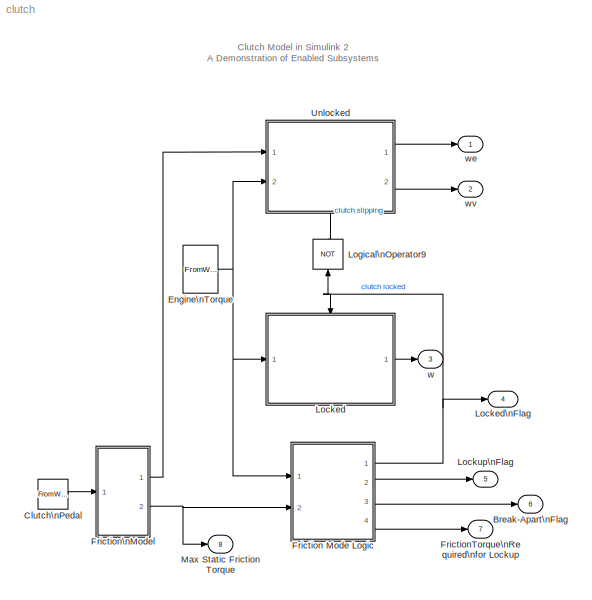
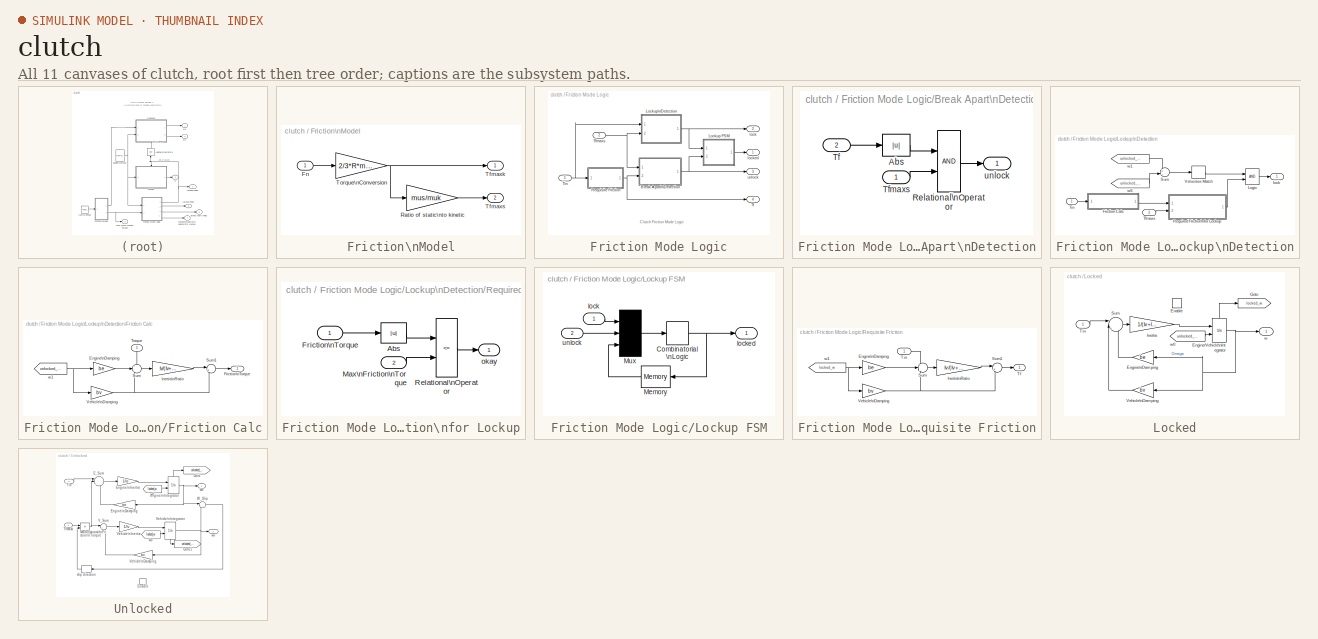
[diagram: thumbnail index - all 11 canvases of the model, root first then tree order]
MODEL clutch
KIND model
CONFIG PostLoadFcn = clutchplot
CONFIG PreLoadFcn = load clutchparam.mat
CONFIG StartFcn = clutchplot Start
CONFIG StopFcn = clutchplot Stop
BLOCK [Outport] Break-Apart\nFlag
  IconDisplay = Port number
  InitialOutput = 0
  Port = 6
BLOCK [FromWorkspace] Clutch\nPedal
  SampleTime = 0
  VariableName = Fn
BLOCK [FromWorkspace] Engine\nTorque
  SampleTime = 0
  VariableName = Tin
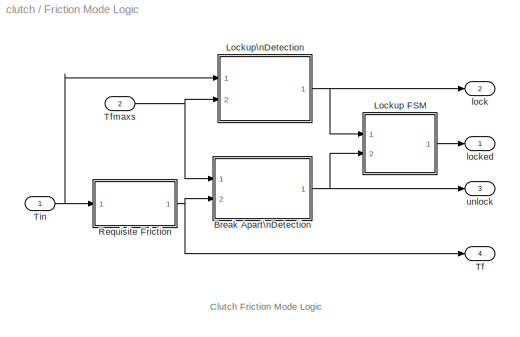
BLOCK [SubSystem] Friction Mode Logic
  MaskDisplay = plot([-3 1 1 3 -1 -1],[-1 -1 1 1 1 -1],-4,-5,4,5)
  MaskIconFrame = on
  MaskIconOpaque = off
  MaskIconRotate = none
  MaskIconUnits = autoscale
  MinAlgLoopOccurrences = off
  Ports = [2, 4]
  PropExecContextAcrossSSBoundary = on
  RTWSystemCode = Auto
  TreatAsAtomicUnit = off
BLOCK [SubSystem] Friction Mode Logic/Break Apart\nDetection
  MinAlgLoopOccurrences = off
  Ports = [2, 1]
  PropExecContextAcrossSSBoundary = on
  RTWSystemCode = Auto
  TreatAsAtomicUnit = off
BLOCK [Abs] Friction Mode Logic/Break Apart\nDetection/Abs
BLOCK [RelationalOperator] Friction Mode Logic/Break Apart\nDetection/Relational\nOperator
BLOCK [Inport] Friction Mode Logic/Break Apart\nDetection/Tf
  IconDisplay = Port number
  LatchInput = off
  Port = 2
BLOCK [Inport] Friction Mode Logic/Break Apart\nDetection/Tfmaxs
  IconDisplay = Port number
  LatchInput = off
  Port = 1
BLOCK [Outport] Friction Mode Logic/Break Apart\nDetection/unlock
  IconDisplay = Port number
  InitialOutput = 0
BLOCK [SubSystem] Friction Mode Logic/Lockup FSM
  MinAlgLoopOccurrences = off
  Ports = [2, 1]
  PropExecContextAcrossSSBoundary = on
  RTWSystemCode = Auto
  TreatAsAtomicUnit = off
BLOCK [CombinatorialLogic] Friction Mode Logic/Lockup FSM/Combinatorial \nLogic
  TruthTable = [0;1;0;0;1;1;1;0]
BLOCK [Memory] Friction Mode Logic/Lockup FSM/Memory
BLOCK [Mux] Friction Mode Logic/Lockup FSM/Mux
  Inputs = 3
  Ports = [3, 1]
BLOCK [Inport] Friction Mode Logic/Lockup FSM/lock
  IconDisplay = Port number
  LatchInput = off
  Port = 1
BLOCK [Outport] Friction Mode Logic/Lockup FSM/locked
  IconDisplay = Port number
  InitialOutput = 0
BLOCK [Inport] Friction Mode Logic/Lockup FSM/unlock
  IconDisplay = Port number
  LatchInput = off
  Port = 2
BLOCK [SubSystem] Friction Mode Logic/Lockup\nDetection
  MinAlgLoopOccurrences = off
  Ports = [2, 1]
  PropExecContextAcrossSSBoundary = on
  RTWSystemCode = Auto
  TreatAsAtomicUnit = off
BLOCK [SubSystem] Friction Mode Logic/Lockup\nDetection/Friction Calc
  MinAlgLoopOccurrences = off
  Ports = [1, 1]
  PropExecContextAcrossSSBoundary = on
  RTWSystemCode = Auto
  TreatAsAtomicUnit = off
BLOCK [Gain] Friction Mode Logic/Lockup\nDetection/Friction Calc/Engine\nDamping
  Gain = be
BLOCK [Outport] Friction Mode Logic/Lockup\nDetection/Friction Calc/Friction\nTorque
  IconDisplay = Port number
  InitialOutput = 0
BLOCK [Gain] Friction Mode Logic/Lockup\nDetection/Friction Calc/Inertia\nRatio
  Gain = Iv/(Iv+Ie)
BLOCK [Sum] Friction Mode Logic/Lockup\nDetection/Friction Calc/Sum
  IconShape = round
  Inputs = +--
  Ports = [3, 1]
BLOCK [Sum] Friction Mode Logic/Lockup\nDetection/Friction Calc/Sum1
  IconShape = round
  Inputs = |++
  Ports = [2, 1]
BLOCK [Inport] Friction Mode Logic/Lockup\nDetection/Friction Calc/Torque
  IconDisplay = Port number
  LatchInput = off
  Port = 1
BLOCK [Gain] Friction Mode Logic/Lockup\nDetection/Friction Calc/Vehicle\nDamping
  Gain = bv
BLOCK [From] Friction Mode Logic/Lockup\nDetection/Friction Calc/w1
  DialogController = Simulink.DDGSource
  GotoTag = unlocked_we
BLOCK [Logic] Friction Mode Logic/Lockup\nDetection/Logic
  Ports = [2, 1]
BLOCK [SubSystem] Friction Mode Logic/Lockup\nDetection/Required Friction\nfor Lockup
  MinAlgLoopOccurrences = off
  Ports = [2, 1]
  PropExecContextAcrossSSBoundary = on
  RTWSystemCode = Auto
  TreatAsAtomicUnit = off
BLOCK [Abs] Friction Mode Logic/Lockup\nDetection/Required Friction\nfor Lockup/Abs
BLOCK [Inport] Friction Mode Logic/Lockup\nDetection/Required Friction\nfor Lockup/Friction\nTorque
  IconDisplay = Port number
  LatchInput = off
  Port = 1
BLOCK [Inport] Friction Mode Logic/Lockup\nDetection/Required Friction\nfor Lockup/Max\nFriction\nTorque
  IconDisplay = Port number
  LatchInput = off
  Port = 2
BLOCK [RelationalOperator] Friction Mode Logic/Lockup\nDetection/Required Friction\nfor Lockup/Relational\nOperator
  Operator = <=
BLOCK [Outport] Friction Mode Logic/Lockup\nDetection/Required Friction\nfor Lockup/okay
  IconDisplay = Port number
  InitialOutput = 0
BLOCK [Sum] Friction Mode Logic/Lockup\nDetection/Sum
  IconShape = round
  Inputs = +-
  Ports = [2, 1]
BLOCK [Inport] Friction Mode Logic/Lockup\nDetection/Tfmaxs
  IconDisplay = Port number
  LatchInput = off
  Port = 2
BLOCK [Inport] Friction Mode Logic/Lockup\nDetection/Tin
  IconDisplay = Port number
  LatchInput = off
  Port = 1
BLOCK [HitCross] Friction Mode Logic/Lockup\nDetection/Velocities Match
  HitCrossingDirection = either
  Ports = [1, 1]
BLOCK [Outport] Friction Mode Logic/Lockup\nDetection/lock
  IconDisplay = Port number
  InitialOutput = 0
BLOCK [From] Friction Mode Logic/Lockup\nDetection/w1
  DialogController = Simulink.DDGSource
  GotoTag = unlocked_we
BLOCK [From] Friction Mode Logic/Lockup\nDetection/w6
  DialogController = Simulink.DDGSource
  GotoTag = unlocked_wv
BLOCK [SubSystem] Friction Mode Logic/Requisite Friction
  MinAlgLoopOccurrences = off
  Ports = [1, 1]
  PropExecContextAcrossSSBoundary = on
  RTWSystemCode = Auto
  TreatAsAtomicUnit = off
BLOCK [Gain] Friction Mode Logic/Requisite Friction/Engine\nDamping
  Gain = be
BLOCK [Gain] Friction Mode Logic/Requisite Friction/Inertia\nRatio
  Gain = Iv/(Iv+Ie)
BLOCK [Sum] Friction Mode Logic/Requisite Friction/Sum
  IconShape = round
  Inputs = +--
  Ports = [3, 1]
BLOCK [Sum] Friction Mode Logic/Requisite Friction/Sum1
  IconShape = round
  Inputs = |++
  Ports = [2, 1]
BLOCK [Outport] Friction Mode Logic/Requisite Friction/Tf
  IconDisplay = Port number
  InitialOutput = 0
BLOCK [Inport] Friction Mode Logic/Requisite Friction/Tin
  IconDisplay = Port number
  LatchInput = off
  Port = 1
BLOCK [Gain] Friction Mode Logic/Requisite Friction/Vehicle\nDamping
  Gain = bv
BLOCK [From] Friction Mode Logic/Requisite Friction/w1
  DialogController = Simulink.DDGSource
  GotoTag = locked_w
BLOCK [Outport] Friction Mode Logic/Tf
  IconDisplay = Port number
  InitialOutput = 0
  Port = 4
BLOCK [Inport] Friction Mode Logic/Tfmaxs
  IconDisplay = Port number
  LatchInput = off
  Port = 2
BLOCK [Inport] Friction Mode Logic/Tin
  IconDisplay = Port number
  LatchInput = off
  Port = 1
BLOCK [Outport] Friction Mode Logic/lock
  IconDisplay = Port number
  InitialOutput = 0
  Port = 2
BLOCK [Outport] Friction Mode Logic/locked
  IconDisplay = Port number
  InitialOutput = 0
BLOCK [Outport] Friction Mode Logic/unlock
  IconDisplay = Port number
  InitialOutput = 0
  Port = 3
BLOCK [Outport] FrictionTorque\nRequired\nfor Lockup
  IconDisplay = Port number
  InitialOutput = 0
  Port = 7
BLOCK [SubSystem] Friction\nModel
  MinAlgLoopOccurrences = off
  Ports = [1, 2]
  PropExecContextAcrossSSBoundary = on
  RTWSystemCode = Auto
  TreatAsAtomicUnit = off
BLOCK [Inport] Friction\nModel/Fn
  IconDisplay = Port number
  LatchInput = off
  Port = 1
BLOCK [Gain] Friction\nModel/Ratio of static\nto kinetic
  Gain = mus/muk
BLOCK [Outport] Friction\nModel/Tfmaxk
  IconDisplay = Port number
  InitialOutput = 0
BLOCK [Outport] Friction\nModel/Tfmaxs
  IconDisplay = Port number
  InitialOutput = 0
  Port = 2
BLOCK [Gain] Friction\nModel/Torque\nConversion
  Gain = 2/3*R*muk
BLOCK [SubSystem] Locked
  MaskDisplay = plot(-1,-6,6,12,[0 3],[3 3],[3 1 1 3], [1 1 5 5],[2 4 4 2],[4 4 2 2],[4 5],[3 3])
  MaskIconFrame = on
  MaskIconOpaque = off
  MaskIconRotate = none
  MaskIconUnits = autoscale
  MinAlgLoopOccurrences = off
  Ports = [1, 1, 1]
  PropExecContextAcrossSSBoundary = on
  RTWSystemCode = Auto
  TreatAsAtomicUnit = on
BLOCK [EnablePort] Locked/Enable
  Ports = []
  StatesWhenEnabling = reset
BLOCK [Integrator] Locked/Engine//Vehicle\nIntegrator
  InitialConditionSource = external
  Ports = [2, 1, 0, 0, 1]
  ShowStatePort = on
BLOCK [Gain] Locked/Engine\nDamping
  Gain = be
BLOCK [Goto] Locked/Goto
  DialogController = Simulink.DDGSource
  GotoTag = locked_w
  TagVisibility = global
BLOCK [Gain] Locked/Inertia
  Gain = 1/(Iv+Ie)
BLOCK [Sum] Locked/Sum
  IconShape = round
  Inputs = ||+--
  Ports = [3, 1]
BLOCK [Inport] Locked/Tin
  IconDisplay = Port number
  LatchInput = off
  Port = 1
BLOCK [Gain] Locked/Vehicle\nDamping
  Gain = bv
BLOCK [Outport] Locked/w
  IconDisplay = Port number
  InitialOutput = 0
BLOCK [From] Locked/w0
  DialogController = Simulink.DDGSource
  GotoTag = unlocked_we
BLOCK [Outport] Locked\nFlag
  IconDisplay = Port number
  InitialOutput = 0
  Port = 4
BLOCK [Outport] Lockup\nFlag
  IconDisplay = Port number
  InitialOutput = 0
  Port = 5
BLOCK [Logic] Logical\nOperator9
  Inputs = 1
  MaskDisplay = plot(0, -.25, 2., .5, [0 2 0 0], [-.5 0 .5 -.5],.2*cos(0:.1:2*pi)+2.2, .1*sin(0:.1:2*pi))
  MaskIconFrame = off
  MaskIconOpaque = on
  MaskIconRotate = port
  MaskIconUnits = autoscale
  Operator = NOT
  Ports = [1, 1]
BLOCK [Outport] Max Static Friction Torque
  IconDisplay = Port number
  InitialOutput = 0
  Port = 8
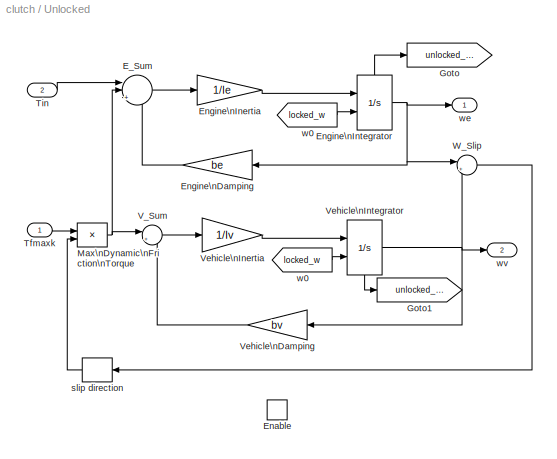
BLOCK [SubSystem] Unlocked
  MaskDisplay = plot(-1,-2,6,8,[0 3],[3 3],[3 1 1 3], [1 1 5 5],[2 4 4 2],[4 4 2 2],[4 5],[3 3])
  MaskIconFrame = on
  MaskIconOpaque = off
  MaskIconRotate = none
  MaskIconUnits = autoscale
  MinAlgLoopOccurrences = off
  Ports = [2, 2, 1]
  PropExecContextAcrossSSBoundary = on
  RTWSystemCode = Auto
  TreatAsAtomicUnit = on
BLOCK [Sum] Unlocked/E_Sum
  IconShape = round
  Inputs = ||+--
  Ports = [3, 1]
BLOCK [EnablePort] Unlocked/Enable
  Ports = []
  StatesWhenEnabling = reset
BLOCK [Gain] Unlocked/Engine\nDamping
  Gain = be
BLOCK [Gain] Unlocked/Engine\nInertia
  Gain = 1/Ie
BLOCK [Integrator] Unlocked/Engine\nIntegrator
  InitialConditionSource = external
  Ports = [2, 1, 0, 0, 1]
  ShowStatePort = on
BLOCK [Goto] Unlocked/Goto
  DialogController = Simulink.DDGSource
  GotoTag = unlocked_we
  TagVisibility = global
BLOCK [Goto] Unlocked/Goto1
  DialogController = Simulink.DDGSource
  GotoTag = unlocked_wv
  TagVisibility = global
BLOCK [Product] Unlocked/Max\nDynamic\nFriction\nTorque
  Ports = [2, 1]
BLOCK [Inport] Unlocked/Tfmaxk
  IconDisplay = Port number
  LatchInput = off
  Port = 1
BLOCK [Inport] Unlocked/Tin
  IconDisplay = Port number
  LatchInput = off
  Port = 2
BLOCK [Sum] Unlocked/V_Sum
  IconShape = round
  Inputs = |+-
  Ports = [2, 1]
BLOCK [Gain] Unlocked/Vehicle\nDamping
  Gain = bv
BLOCK [Gain] Unlocked/Vehicle\nInertia
  Gain = 1/Iv
BLOCK [Integrator] Unlocked/Vehicle\nIntegrator
  InitialConditionSource = external
  Ports = [2, 1, 0, 0, 1]
  ShowStatePort = on
BLOCK [Sum] Unlocked/W_Slip
  IconShape = round
  Inputs = |+-
  Ports = [2, 1]
BLOCK [Signum] Unlocked/slip direction
BLOCK [From] Unlocked/w0
  DialogController = Simulink.DDGSource
  GotoTag = locked_w
BLOCK [From] Unlocked/w0 
  DialogController = Simulink.DDGSource
  GotoTag = locked_w
BLOCK [Outport] Unlocked/we
  IconDisplay = Port number
  InitialOutput = 0
BLOCK [Outport] Unlocked/wv
  IconDisplay = Port number
  InitialOutput = 0
  Port = 2
BLOCK [Outport] w
  IconDisplay = Port number
  InitialOutput = 0
  Port = 3
BLOCK [Outport] we
  IconDisplay = Port number
  InitialOutput = 0
BLOCK [Outport] wv
  IconDisplay = Port number
  InitialOutput = 0
  Port = 2
ANNOTATION (root): Clutch Model in Simulink 2\nA Demonstration of Enabled Subsystems
ANNOTATION Friction Mode Logic: Clutch Friction Mode Logic
LINE Clutch\nPedal:1 -> Friction\nModel:1
NET Engine\nTorque:1 -> Friction Mode Logic:1, Locked:1, Unlocked:2
LINE Friction Mode Logic/Break Apart\nDetection/Abs:1 -> Friction Mode Logic/Break Apart\nDetection/Relational\nOperator:1
LINE Friction Mode Logic/Break Apart\nDetection/Relational\nOperator:1 -> Friction Mode Logic/Break Apart\nDetection/unlock:1
LINE Friction Mode Logic/Break Apart\nDetection/Tf:1 -> Friction Mode Logic/Break Apart\nDetection/Abs:1
LINE Friction Mode Logic/Break Apart\nDetection/Tfmaxs:1 -> Friction Mode Logic/Break Apart\nDetection/Relational\nOperator:2
NET Friction Mode Logic/Break Apart\nDetection:1 -> Friction Mode Logic/Lockup FSM:2, Friction Mode Logic/unlock:1
NET Friction Mode Logic/Lockup FSM/Combinatorial \nLogic:1 -> Friction Mode Logic/Lockup FSM/Memory:1, Friction Mode Logic/Lockup FSM/locked:1
LINE Friction Mode Logic/Lockup FSM/Memory:1 -> Friction Mode Logic/Lockup FSM/Mux:3
LINE Friction Mode Logic/Lockup FSM/Mux:1 -> Friction Mode Logic/Lockup FSM/Combinatorial \nLogic:1
LINE Friction Mode Logic/Lockup FSM/lock:1 -> Friction Mode Logic/Lockup FSM/Mux:1
LINE Friction Mode Logic/Lockup FSM/unlock:1 -> Friction Mode Logic/Lockup FSM/Mux:2
LINE Friction Mode Logic/Lockup FSM:1 -> Friction Mode Logic/locked:1
LINE Friction Mode Logic/Lockup\nDetection/Friction Calc/Engine\nDamping:1 -> Friction Mode Logic/Lockup\nDetection/Friction Calc/Sum:2
LINE Friction Mode Logic/Lockup\nDetection/Friction Calc/Inertia\nRatio:1 -> Friction Mode Logic/Lockup\nDetection/Friction Calc/Sum1:1
LINE Friction Mode Logic/Lockup\nDetection/Friction Calc/Sum1:1 -> Friction Mode Logic/Lockup\nDetection/Friction Calc/Friction\nTorque:1
LINE Friction Mode Logic/Lockup\nDetection/Friction Calc/Sum:1 -> Friction Mode Logic/Lockup\nDetection/Friction Calc/Inertia\nRatio:1
LINE Friction Mode Logic/Lockup\nDetection/Friction Calc/Torque:1 -> Friction Mode Logic/Lockup\nDetection/Friction Calc/Sum:1
NET Friction Mode Logic/Lockup\nDetection/Friction Calc/Vehicle\nDamping:1 -> Friction Mode Logic/Lockup\nDetection/Friction Calc/Sum1:2, Friction Mode Logic/Lockup\nDetection/Friction Calc/Sum:3
NET Friction Mode Logic/Lockup\nDetection/Friction Calc/w1:1 -> Friction Mode Logic/Lockup\nDetection/Friction Calc/Engine\nDamping:1, Friction Mode Logic/Lockup\nDetection/Friction Calc/Vehicle\nDamping:1
LINE Friction Mode Logic/Lockup\nDetection/Friction Calc:1 -> Friction Mode Logic/Lockup\nDetection/Required Friction\nfor Lockup:1
LINE Friction Mode Logic/Lockup\nDetection/Logic:1 -> Friction Mode Logic/Lockup\nDetection/lock:1
LINE Friction Mode Logic/Lockup\nDetection/Required Friction\nfor Lockup/Abs:1 -> Friction Mode Logic/Lockup\nDetection/Required Friction\nfor Lockup/Relational\nOperator:1
LINE Friction Mode Logic/Lockup\nDetection/Required Friction\nfor Lockup/Friction\nTorque:1 -> Friction Mode Logic/Lockup\nDetection/Required Friction\nfor Lockup/Abs:1
LINE Friction Mode Logic/Lockup\nDetection/Required Friction\nfor Lockup/Max\nFriction\nTorque:1 -> Friction Mode Logic/Lockup\nDetection/Required Friction\nfor Lockup/Relational\nOperator:2
LINE Friction Mode Logic/Lockup\nDetection/Required Friction\nfor Lockup/Relational\nOperator:1 -> Friction Mode Logic/Lockup\nDetection/Required Friction\nfor Lockup/okay:1
LINE Friction Mode Logic/Lockup\nDetection/Required Friction\nfor Lockup:1 -> Friction Mode Logic/Lockup\nDetection/Logic:2
LINE Friction Mode Logic/Lockup\nDetection/Sum:1 -> Friction Mode Logic/Lockup\nDetection/Velocities Match:1
LINE Friction Mode Logic/Lockup\nDetection/Tfmaxs:1 -> Friction Mode Logic/Lockup\nDetection/Required Friction\nfor Lockup:2
LINE Friction Mode Logic/Lockup\nDetection/Tin:1 -> Friction Mode Logic/Lockup\nDetection/Friction Calc:1
LINE Friction Mode Logic/Lockup\nDetection/Velocities Match:1 -> Friction Mode Logic/Lockup\nDetection/Logic:1
LINE Friction Mode Logic/Lockup\nDetection/w1:1 -> Friction Mode Logic/Lockup\nDetection/Sum:1
LINE Friction Mode Logic/Lockup\nDetection/w6:1 -> Friction Mode Logic/Lockup\nDetection/Sum:2
NET Friction Mode Logic/Lockup\nDetection:1 -> Friction Mode Logic/Lockup FSM:1, Friction Mode Logic/lock:1
LINE Friction Mode Logic/Requisite Friction/Engine\nDamping:1 -> Friction Mode Logic/Requisite Friction/Sum:2
LINE Friction Mode Logic/Requisite Friction/Inertia\nRatio:1 -> Friction Mode Logic/Requisite Friction/Sum1:1
LINE Friction Mode Logic/Requisite Friction/Sum1:1 -> Friction Mode Logic/Requisite Friction/Tf:1
LINE Friction Mode Logic/Requisite Friction/Sum:1 -> Friction Mode Logic/Requisite Friction/Inertia\nRatio:1
LINE Friction Mode Logic/Requisite Friction/Tin:1 -> Friction Mode Logic/Requisite Friction/Sum:1
NET Friction Mode Logic/Requisite Friction/Vehicle\nDamping:1 -> Friction Mode Logic/Requisite Friction/Sum1:2, Friction Mode Logic/Requisite Friction/Sum:3
NET Friction Mode Logic/Requisite Friction/w1:1 -> Friction Mode Logic/Requisite Friction/Engine\nDamping:1, Friction Mode Logic/Requisite Friction/Vehicle\nDamping:1
NET Friction Mode Logic/Requisite Friction:1 -> Friction Mode Logic/Break Apart\nDetection:2, Friction Mode Logic/Tf:1
NET Friction Mode Logic/Tfmaxs:1 -> Friction Mode Logic/Break Apart\nDetection:1, Friction Mode Logic/Lockup\nDetection:2
NET Friction Mode Logic/Tin:1 -> Friction Mode Logic/Lockup\nDetection:1, Friction Mode Logic/Requisite Friction:1
NET Friction Mode Logic:1 -> Locked:enable, Locked\nFlag:1, Logical\nOperator9:1
LINE Friction Mode Logic:2 -> Lockup\nFlag:1
LINE Friction Mode Logic:3 -> Break-Apart\nFlag:1
LINE Friction Mode Logic:4 -> FrictionTorque\nRequired\nfor Lockup:1
LINE Friction\nModel/Fn:1 -> Friction\nModel/Torque\nConversion:1
LINE Friction\nModel/Ratio of static\nto kinetic:1 -> Friction\nModel/Tfmaxs:1
NET Friction\nModel/Torque\nConversion:1 -> Friction\nModel/Ratio of static\nto kinetic:1, Friction\nModel/Tfmaxk:1
LINE Friction\nModel:1 -> Unlocked:1
NET Friction\nModel:2 -> Friction Mode Logic:2, Max Static Friction Torque:1
NET Locked/Engine//Vehicle\nIntegrator:1 -> Locked/Engine\nDamping:1, Locked/Vehicle\nDamping:1, Locked/w:1
LINE Locked/Engine//Vehicle\nIntegrator:state -> Locked/Goto:1
LINE Locked/Engine\nDamping:1 -> Locked/Sum:3
LINE Locked/Inertia:1 -> Locked/Engine//Vehicle\nIntegrator:1
LINE Locked/Sum:1 -> Locked/Inertia:1
LINE Locked/Tin:1 -> Locked/Sum:1
LINE Locked/Vehicle\nDamping:1 -> Locked/Sum:2
LINE Locked/w0:1 -> Locked/Engine//Vehicle\nIntegrator:2
LINE Locked:1 -> w:1
LINE Logical\nOperator9:1 -> Unlocked:enable
LINE Unlocked/E_Sum:1 -> Unlocked/Engine\nInertia:1
LINE Unlocked/Engine\nDamping:1 -> Unlocked/E_Sum:3
LINE Unlocked/Engine\nInertia:1 -> Unlocked/Engine\nIntegrator:1
NET Unlocked/Engine\nIntegrator:1 -> Unlocked/Engine\nDamping:1, Unlocked/W_Slip:1, Unlocked/we:1
LINE Unlocked/Engine\nIntegrator:state -> Unlocked/Goto:1
NET Unlocked/Max\nDynamic\nFriction\nTorque:1 -> Unlocked/E_Sum:2, Unlocked/V_Sum:1
LINE Unlocked/Tfmaxk:1 -> Unlocked/Max\nDynamic\nFriction\nTorque:1
LINE Unlocked/Tin:1 -> Unlocked/E_Sum:1
LINE Unlocked/V_Sum:1 -> Unlocked/Vehicle\nInertia:1
LINE Unlocked/Vehicle\nDamping:1 -> Unlocked/V_Sum:2
LINE Unlocked/Vehicle\nInertia:1 -> Unlocked/Vehicle\nIntegrator:1
NET Unlocked/Vehicle\nIntegrator:1 -> Unlocked/Vehicle\nDamping:1, Unlocked/W_Slip:2, Unlocked/wv:1
LINE Unlocked/Vehicle\nIntegrator:state -> Unlocked/Goto1:1
LINE Unlocked/W_Slip:1 -> Unlocked/slip direction:1
LINE Unlocked/slip direction:1 -> Unlocked/Max\nDynamic\nFriction\nTorque:2
LINE Unlocked/w0 :1 -> Unlocked/Engine\nIntegrator:2
LINE Unlocked/w0:1 -> Unlocked/Vehicle\nIntegrator:2
LINE Unlocked:1 -> we:1
LINE Unlocked:2 -> wv:1
note: NET lines group one-source signal fan-out (src -> all destinations, sorted); 1:1 wires keep LINE
